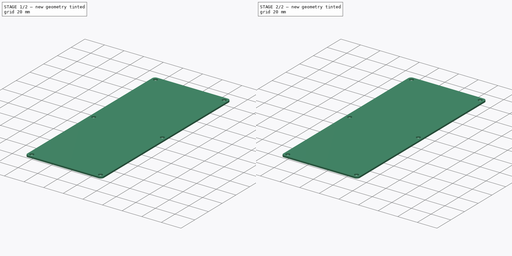
[diagram: build sequence overview — one tinted view per stage of 2, left to right]
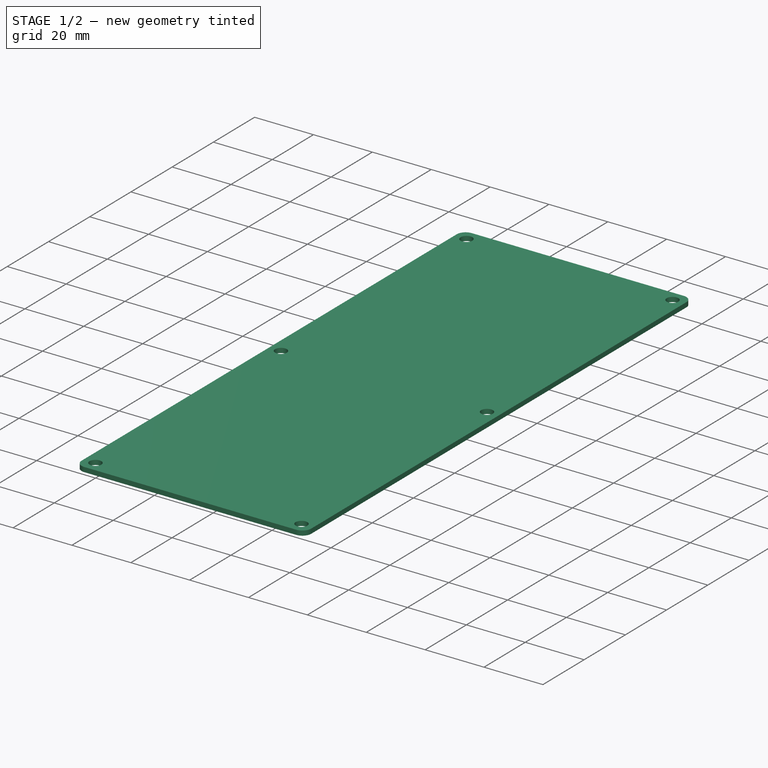
[diagram: stage 1 of 2 — iso view after this stage's code; geometry added in this stage tinted green]
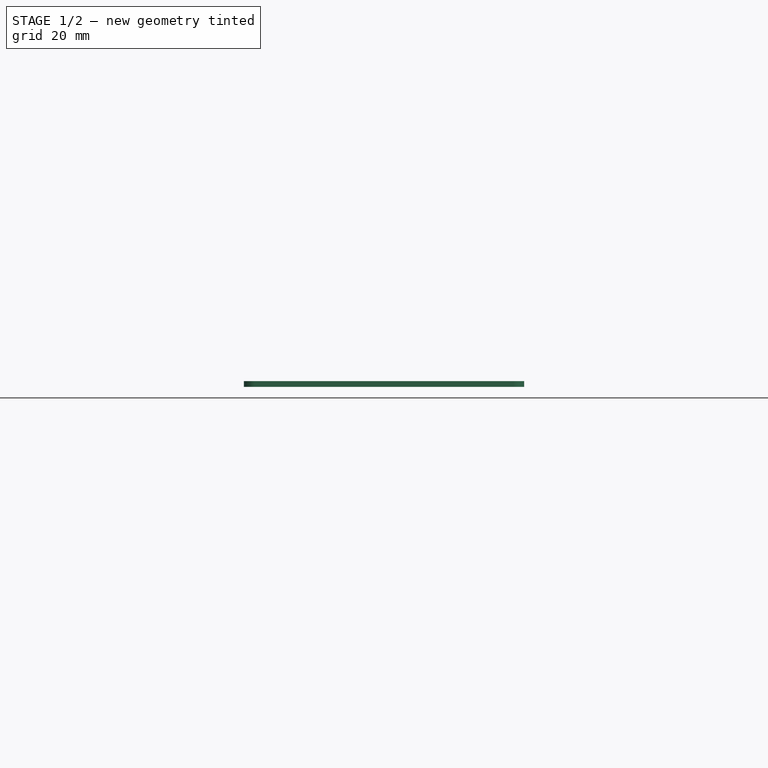
[diagram: stage 1 of 2 — front view after this stage's code; geometry added in this stage tinted green]
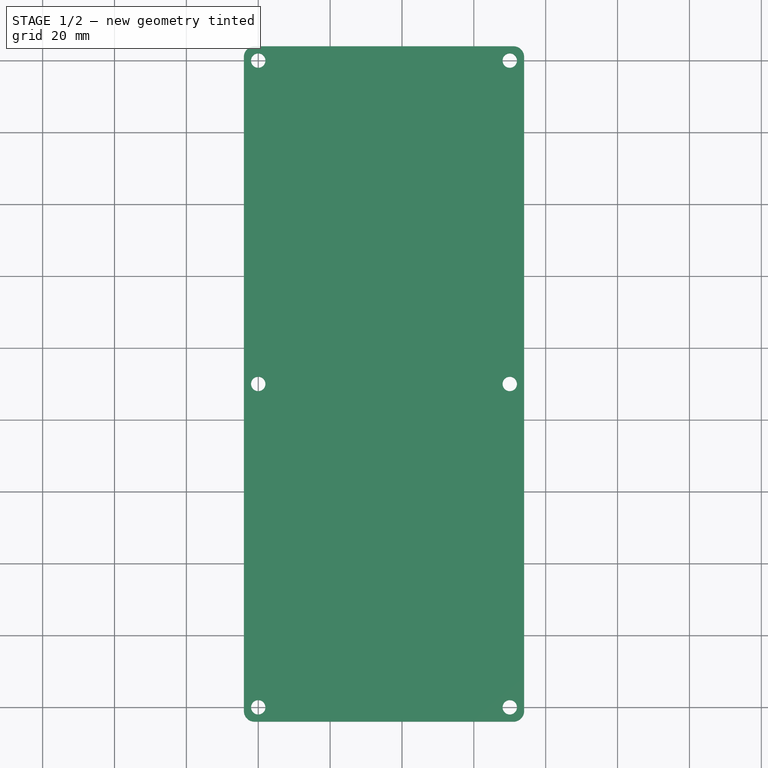
[diagram: stage 1 of 2 — top view after this stage's code; geometry added in this stage tinted green]
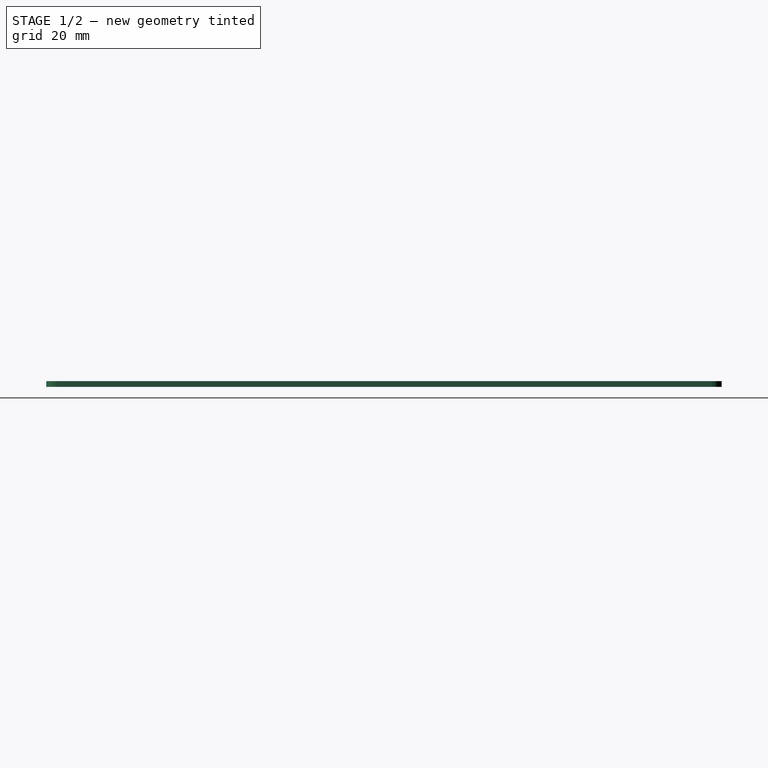
[diagram: stage 1 of 2 — right view after this stage's code; geometry added in this stage tinted green]
FCSTD DOCUMENT  (FreeCAD 0.17R12714 (Git))
Label: interconnect_cover_PP-FP0144
License: All rights reserved
LicenseURL: http://en.wikipedia.org/wiki/All_rights_reserved
objects: Drawing::FeatureView×60, Drawing::FeatureViewPart×4, Sketcher::SketchObject×2, Drawing::FeaturePage×2, PartDesign::Pad×1, PartDesign::Fillet×1, PartDesign::Pocket×1, PartDesign::Body×1, App::Part×1
note: 8 computed .brp shape members not serialized (recipe doc carries the construction recipe); baked Part::Feature solids carry a one-line shape summary decoded from their .brp

FEATURE [Sketcher::SketchObject] Sketch
  MapMode = 5
  Support = -> [XY_Plane001]
  sketch-geometry (15):
    g0: LineSegment [constr] StartX=0 StartY=0 StartZ=0 EndX=70 EndY=0 EndZ=0
    g1: LineSegment [constr] StartX=70 StartY=0 StartZ=0 EndX=70 EndY=180 EndZ=0
    g2: LineSegment [constr] StartX=70 StartY=180 StartZ=0 EndX=0 EndY=180 EndZ=0
    g3: LineSegment [constr] StartX=0 StartY=180 StartZ=0 EndX=0 EndY=0 EndZ=0
    g4: LineSegment [constr] StartX=0 StartY=90 StartZ=0 EndX=70 EndY=90 EndZ=0
    g5: LineSegment StartX=-4 StartY=184 StartZ=0 EndX=74 EndY=184 EndZ=0
    g6: LineSegment StartX=74 StartY=184 StartZ=0 EndX=74 EndY=-4 EndZ=0
    g7: LineSegment StartX=74 StartY=-4 StartZ=0 EndX=-4 EndY=-4 EndZ=0
    g8: LineSegment StartX=-4 StartY=-4 StartZ=0 EndX=-4 EndY=184 EndZ=0
    g9: Circle CenterX=0 CenterY=180 CenterZ=0 NormalX=0 NormalY=0 NormalZ=1 AngleXU=0 Radius=2
    g10: Circle CenterX=70 CenterY=180 CenterZ=0 NormalX=0 NormalY=0 NormalZ=1 AngleXU=0 Radius=2
    g11: Circle CenterX=70 CenterY=90 CenterZ=0 NormalX=0 NormalY=0 NormalZ=1 AngleXU=0 Radius=2
    g12: Circle CenterX=0 CenterY=90 CenterZ=0 NormalX=0 NormalY=0 NormalZ=1 AngleXU=0 Radius=2
    g13: Circle CenterX=0 CenterY=0 CenterZ=0 NormalX=0 NormalY=0 NormalZ=1 AngleXU=0 Radius=2
    g14: Circle CenterX=70 CenterY=0 CenterZ=0 NormalX=0 NormalY=0 NormalZ=1 AngleXU=0 Radius=2
  constraints (39):
    c: Coincident(g0,g1)
    c: Coincident(g1,g2)
    c: Coincident(g2,g3)
    c: Coincident(g3,g0)
    c: Horizontal(g0)
    c: Horizontal(g2)
    c: Vertical(g1)
    c: Vertical(g3)
    c: Coincident(g0,g-1)
    c: PointOnObject(g4,g3)
    c: PointOnObject(g4,g1)
    c: Horizontal(g4)
    c: DistanceY(g-1,g4) = 90
    c: DistanceY(g3) = -180
    c: DistanceX(g2) = -70
    c: Coincident(g5,g6)
    c: Coincident(g6,g7)
    c: Coincident(g7,g8)
    c: Coincident(g8,g5)
    c: Horizontal(g5)
    c: Horizontal(g7)
    c: Vertical(g6)
    c: Vertical(g8)
    c: DistanceX(g-1,g7) = -4
    c: DistanceY(g-1,g7) = -4
    c: DistanceX(g1,g5) = 4
    c: DistanceY(g1,g5) = 4
    c: Coincident(g9,g2)
    c: Coincident(g10,g1)
    c: Coincident(g11,g4)
    c: Coincident(g12,g4)
    c: Coincident(g13,g-1)
    c: Coincident(g14,g0)
    c: Equal(g13,g12)
    c: Equal(g12,g11)
    c: Equal(g11,g14)
    c: Equal(g14,g9)
    c: Equal(g9,g10)
    c: Radius(g10) = 2
FEATURE [PartDesign::Pad] Pad
  Length = 1.59
  Length2 = 100
  Profile = -> Sketch
  Type = 0
FEATURE [PartDesign::Fillet] Fillet
  Base = -> Pad [Edge8,Edge5,Edge2,Edge1]
  BaseFeature = -> Pad
  Radius = 3
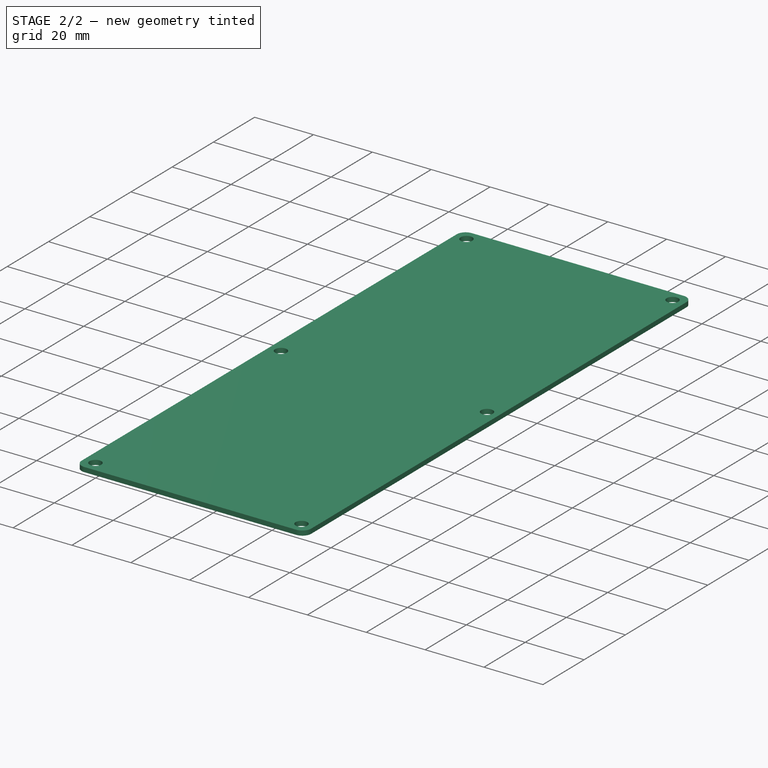
[diagram: stage 2 of 2 — iso view after this stage's code; geometry added in this stage tinted green]
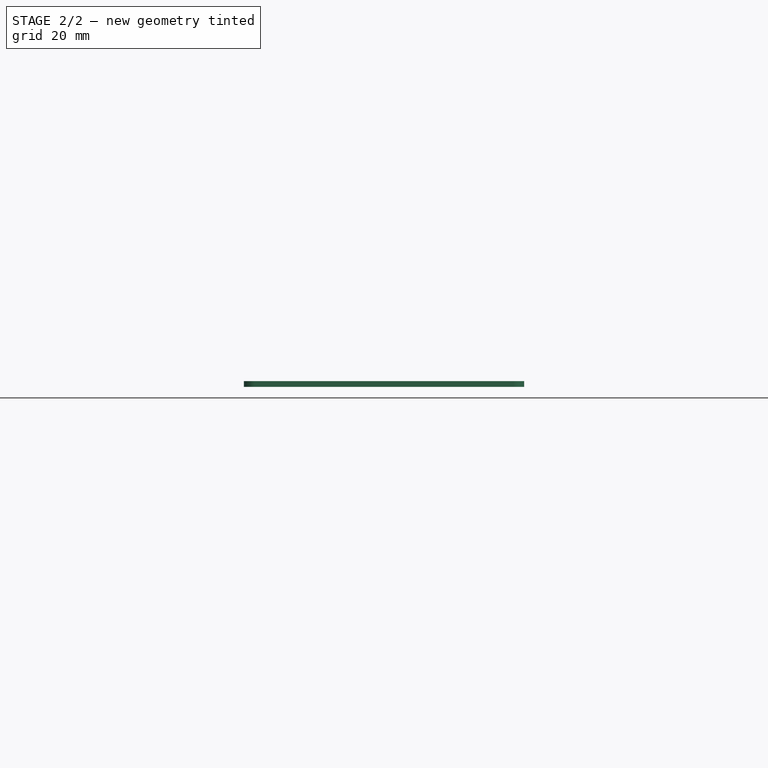
[diagram: stage 2 of 2 — front view after this stage's code; geometry added in this stage tinted green]
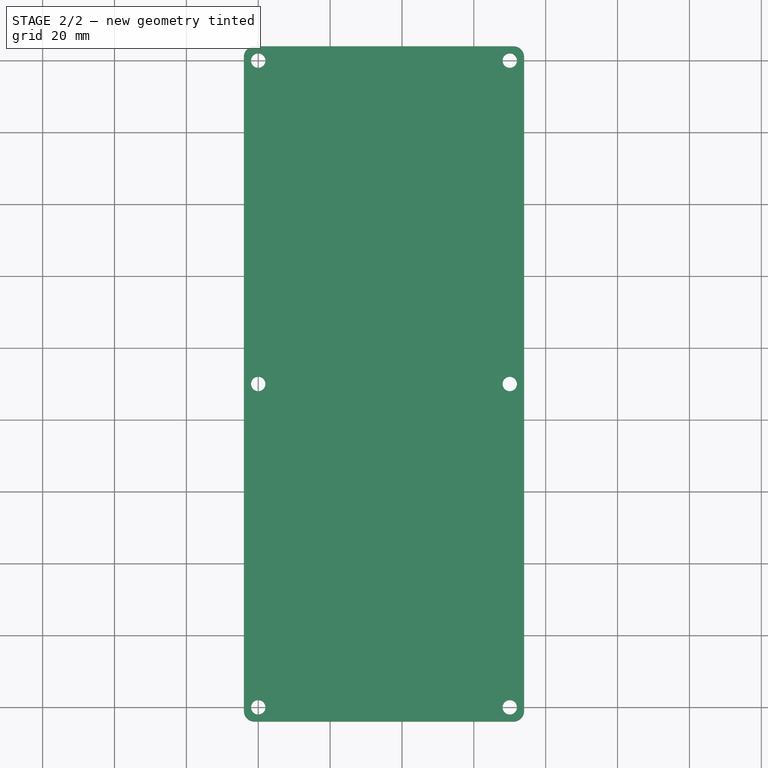
[diagram: stage 2 of 2 — top view after this stage's code; geometry added in this stage tinted green]
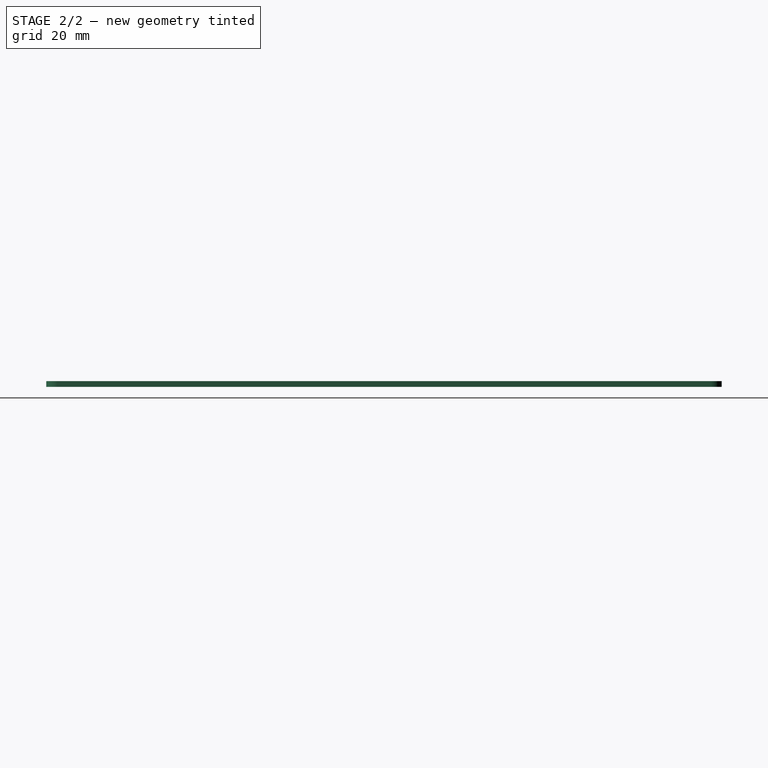
[diagram: stage 2 of 2 — right view after this stage's code; geometry added in this stage tinted green]
FEATURE [Drawing::FeatureViewPart] Ortho  label="Ortho_0_0"
  Direction = (0,0,1)
  HiddenWidth = 0.15
  LineWidth = 0.35
  Rotation = 90
  ShowHiddenLines = false
  ShowSmoothLines = false
  Source = -> Fillet
  Tolerance = 0.05
  ViewResult = <g id="Ortho_0_0"\n   transform="rotate(90,58.5,58) translate(58.5,58) scale(1,1)"\n  >\n<g   fill="none"\n   stroke="rgb(0, 0, 0)"\n   stroke-linecap="butt"\n   stroke-linejoin="miter"\n   stroke-width="0.350000"\n   transform="scale(1,-1)"\n  >\n<path id= "1" d=" M -1 184 L 71 184 " />\n<path d="M-1 184 A3 3 0 0 1 -4 181" /><path d="M71 184 A3 3 0 0 0 74 181" /><path id= "4" d=" M -4 -1 L -4 181 " />\n<path id= "5" d=" M 74 181 L 74 -1 " />\n<path d="M-1 -4 A3 3 0 0 0 -4 -1" /><path d="M74 -1 A3 3 0 0 0 71 -4" /><path id= "8" d=" M 71 -4 L -1 -4 " />\n<circle cx ="70" cy ="90" r ="2" /><circle cx ="70" cy ="0" r ="2" /><circle cx ="0" cy ="90" r ="2" /><circle cx ="0" cy ="0" r ="2" /><circle cx ="70" cy ="180" r ="2" /><circle cx ="0" cy ="180" r ="2" /></g>\n</g>
  Visible = true
  X = 58.5
  Y = 58
FEATURE [Drawing::FeatureViewPart] Ortho001  label="Ortho_0_1"
  Direction = (-1,0,0)
  HiddenWidth = 0.15
  LineWidth = 0.35
  Rotation = -90
  ShowHiddenLines = false
  ShowSmoothLines = false
  Source = -> Fillet
  Tolerance = 0.05
  ViewResult = <g id="Ortho_0_1"\n   transform="rotate(-90,58.5,31) translate(58.5,31) scale(1,1)"\n  >\n<g   fill="none"\n   stroke="rgb(0, 0, 0)"\n   stroke-linecap="butt"\n   stroke-linejoin="miter"\n   stroke-width="0.350000"\n   transform="scale(1,-1)"\n  >\n<path id= "1" d=" M 0 -184 L -1.59 -184 " />\n<path d="M0,-184 Q0,-183.991 0,-183.981  Q0,-183.953 0,-183.925  Q0,-183.878 0,-183.832  Q0,-183.767 0,-183.703  Q0,-183.622 0,-183.54  Q0,-183.443 0,-183.345  Q0,-183.233 0,-183.121  Q0,-182.996 0,-182.87  Q0,-182.733 0,-182.596  Q0,-182.449 0,-182.302  Q0,-182.146 0,-181.991  Q0,-181.829 0,-181.668  Q0,-181.337 0,-181 " /><path id= "3" d=" M 0 1 L 0 -181 " />\n<path d="M0,4 Q0,3.99057 0,3.98114  Q0,3.95296 0,3.92478  Q0,3.87822 0,3.83165  Q0,3.76728 0,3.70291  Q0,3.62154 0,3.54017  Q0,3.44283 0,3.34549  Q0,3.23341 0,3.12132  Q0,2.99589 0,2.87047  Q0,2.73328 0,2.5961  Q0,2.44887 0,2.30165  Q0,2.14624 0,1.99084  Q0,1.8292 0,1.66756  Q0,1.33708 0,1 " /><path d="M-1.59,-184 Q-1.59,-183.991 -1.59,-183.981  Q-1.59,-183.953 -1.59,-183.925  Q-1.59,-183.878 -1.59,-183.832  Q-1.59,-183.767 -1.59,-183.703  Q-1.59,-183.622 -1.59,-183.54  Q-1.59,-183.443 -1.59,-183.345  Q-1.59,-183.233 -1.59,-183.121  Q-1.59,-182.996 -1.59,-182.87  Q-1.59,-182.733 -1.59,-182.596  Q-1.59,-182.449 -1.59,-182.302  Q-1.59,-182.146 -1.59,-181.991  Q-1.59,-181.829 -1.59,-181.668  Q-1.59,-181.337 -1.59,-181 " /><path id= "6" d=" M -1.59 1 L -1.59 -181 " />\n<path d="M-1.59,4 Q-1.59,3.99057 -1.59,3.98114  Q-1.59,3.95296 -1.59,3.92478  Q-1.59,3.87822 -1.59,3.83165  Q-1.59,3.76728 -1.59,3.70291  Q-1.59,3.62154 -1.59,3.54017  Q-1.59,3.44283 -1.59,3.34549  Q-1.59,3.23341 -1.59,3.12132  Q-1.59,2.99589 -1.59,2.87047  Q-1.59,2.73328 -1.59,2.5961  Q-1.59,2.44887 -1.59,2.30165  Q-1.59,2.14624 -1.59,1.99084  Q-1.59,1.8292 -1.59,1.66756  Q-1.59,1.33708 -1.59,1 " /><path id= "8" d=" M 0 4 L -1.59 4 " />\n</g>\n</g>
  Visible = true
  X = 58.5
  Y = 31
FEATURE [Drawing::FeatureView] dimText001
  Rotation = 0
  ViewResult = <g> <text x="15.000000" y="160.000000" font-family="inherit" font-size="5" fill="rgb(0,0,0)" text-anchor="inherit" transform="rotate(0.000000 15.000000,160.000000)" >Notes:</text> </g>
  Visible = true
  X = 0
  Y = 0
FEATURE [Drawing::FeatureView] dimText002
  Rotation = 0
  ViewResult = <g> <text x="15.000000" y="165.000000" font-family="inherit" font-size="3" fill="rgb(0,0,0)" text-anchor="inherit" transform="rotate(0.000000 15.000000,165.000000)" >1. Parts must be RoHS compliant.</text> </g>
  Visible = true
  X = 0
  Y = 0
FEATURE [Drawing::FeatureView] dimText003
  Rotation = 0
  ViewResult = <g> <text x="15.000000" y="170.000000" font-family="inherit" font-size="3" fill="rgb(0,0,0)" text-anchor="inherit" transform="rotate(0.000000 15.000000,170.000000)" >2. Material 5052 H32 Aluminum</text> </g>
  Visible = true
  X = 0
  Y = 0
FEATURE [Drawing::FeatureView] dimText004
  Rotation = 0
  ViewResult = <g> <text x="15.000000" y="175.000000" font-family="inherit" font-size="3" fill="rgb(0,0,0)" text-anchor="inherit" transform="rotate(0.000000 15.000000,175.000000)" >3. Break all sharp edges prior to powder coat.</text> </g>
  Visible = true
  X = 0
  Y = 0
FEATURE [Drawing::FeatureView] dimText005
  Rotation = 0
  ViewResult = <g> <text x="15.000000" y="180.000000" font-family="inherit" font-size="3" fill="rgb(0,0,0)" text-anchor="inherit" transform="rotate(0.000000 15.000000,180.000000)" >4. Part is to be powder coated with Cardinal</text> </g>
  Visible = true
  X = 0
  Y = 0
FEATURE [Drawing::FeatureView] dim009
  Rotation = 0
  ViewResult = <g>  <circle cx ="239.500000" cy ="57.000000" r="0.500000" stroke="none" fill="rgb(0,0,255)" /> \n<line x1="250.000000" y1="45.000000" x2="239.500000" y2="57.000000" style="stroke:rgb(0,0,255);stroke-width:0.20" />\n<polygon points="241.475514,54.742270 244.015460,52.978418 243.451028,52.484540 242.886595,51.990661" style="fill:rgb(0,0,255);stroke:rgb(0,0,255);stroke-width:0" />\n<line x1="250.000000" y1="45.000000" x2="270.000000" y2="45.000000" style="stroke:rgb(0,0,255);stroke-width:0.20" />\n<text x="260.000000" y="43.000000" font-family="Verdana" font-size="3" fill="rgb(0,0,255)" text-anchor="middle"  >4X R3.0</text> </g>
  Visible = true
  X = 0
  Y = 0
FEATURE [Drawing::FeatureView] dim010
  Rotation = 0
  ViewResult = <g>  <circle cx ="148.500000" cy ="58.000000" r="0.500000" stroke="none" fill="rgb(0,0,255)" /> \n<line x1="140.000000" y1="45.000000" x2="149.594499" y2="59.673939" style="stroke:rgb(0,0,255);stroke-width:0.20" />\n<polygon points="147.405501,56.326061 146.391480,53.404715 145.763753,53.815152 145.136026,54.225589" style="fill:rgb(0,0,255);stroke:rgb(0,0,255);stroke-width:0" />\n<polygon points="149.594499,59.673939 150.608520,62.595285 151.236247,62.184848 151.863974,61.774411" style="fill:rgb(0,0,255);stroke:rgb(0,0,255);stroke-width:0" />\n<line x1="140.000000" y1="45.000000" x2="110.000000" y2="45.000000" style="stroke:rgb(0,0,255);stroke-width:0.20" />\n<text x="125.000000" y="43.000000" font-family="Verdana" font-size="3" fill="rgb(0,0,255)" text-anchor="middle"  >6X Ø4.0 THRU</text> </g>
  Visible = true
  X = 0
  Y = 0
FEATURE [Drawing::FeatureView] centerLines001
  Rotation = 0
  ViewResult = <g transform="scale(1.000000,1.000000)" stroke="rgb(0,0,255)"  stroke-width="0.300000" > <path d="M 58.500000,128.000000 L 58.500000,126.000000 "/>\n<path d="M 58.500000,128.000000 L 60.489371,128.000000 "/>\n<path d="M 58.500000,128.000000 L 58.500000,129.977161 "/>\n<path d="M 58.500000,128.000000 L 56.500000,128.000000 "/> </g> 
  Visible = true
  X = 0
  Y = 0
FEATURE [Drawing::FeatureView] centerLines002
  Rotation = 0
  ViewResult = <g transform="scale(1.000000,1.000000)" stroke="rgb(0,0,255)"  stroke-width="0.300000" > <path d="M 58.500000,58.000000 L 58.500000,60.000000 "/>\n<path d="M 58.500000,58.000000 L 60.500000,58.000000 "/>\n<path d="M 58.500000,58.000000 L 58.500000,56.000000 "/>\n<path d="M 58.500000,58.000000 L 56.500000,58.000000 "/> </g> 
  Visible = true
  X = 0
  Y = 0
FEATURE [Drawing::FeatureView] centerLines003
  Rotation = 0
  ViewResult = <g transform="scale(1.000000,1.000000)" stroke="rgb(0,0,255)"  stroke-width="0.300000" > <path d="M 148.500000,58.000000 L 148.500000,60.000000 "/>\n<path d="M 148.500000,58.000000 L 150.500000,58.000000 "/>\n<path d="M 148.500000,58.000000 L 148.500000,56.000000 "/>\n<path d="M 148.500000,58.000000 L 146.500000,58.000000 "/> </g> 
  Visible = true
  X = 0
  Y = 0
FEATURE [Drawing::FeatureView] centerLines004
  Rotation = 0
  ViewResult = <g transform="scale(1.000000,1.000000)" stroke="rgb(0,0,255)"  stroke-width="0.300000" > <path d="M 238.500000,58.000000 L 238.500000,60.000000 "/>\n<path d="M 238.500000,58.000000 L 240.207791,58.000000 "/>\n<path d="M 238.500000,58.000000 L 238.500000,56.000000 "/>\n<path d="M 238.500000,58.000000 L 236.500000,58.000000 M 234.500000,58.000000 L 233.708933,58.000000 "/> </g> 
  Visible = true
  X = 0
  Y = 0
FEATURE [Drawing::FeatureView] centerLines005
  Rotation = 0
  ViewResult = <g transform="scale(1.000000,1.000000)" stroke="rgb(0,0,255)"  stroke-width="0.300000" > <path d="M 238.500000,128.000000 L 238.500000,126.000000 "/>\n<path d="M 238.500000,128.000000 L 240.207791,128.000000 "/>\n<path d="M 238.500000,128.000000 L 238.500000,129.727205 "/>\n<path d="M 238.500000,128.000000 L 236.500000,128.000000 "/> </g> 
  Visible = true
  X = 0
  Y = 0
FEATURE [Drawing::FeatureView] centerLines006
  Rotation = 0
  ViewResult = <g transform="scale(1.000000,1.000000)" stroke="rgb(0,0,255)"  stroke-width="0.300000" > <path d="M 148.500000,128.000000 L 148.500000,126.000000 "/>\n<path d="M 148.500000,128.000000 L 150.500000,128.000000 "/>\n<path d="M 148.500000,128.000000 L 148.500000,129.977161 "/>\n<path d="M 148.500000,128.000000 L 146.500000,128.000000 "/> </g> 
  Visible = true
  X = 0
  Y = 0
FEATURE [Drawing::FeatureView] dim002
  Rotation = 0
  ViewResult = <g> \n  <line x1="58.500000" y1="128.000000" x2="49.241172" y2="128.000000" style="stroke:rgb(0,0,255);stroke-width:0.20" />\n<line x1="58.500000" y1="58.000000" x2="49.241172" y2="58.000000" style="stroke:rgb(0,0,255);stroke-width:0.20" />\n<line x1="50.241172" y1="128.000000" x2="50.241172" y2="58.000000" style="stroke:rgb(0,0,255);stroke-width:0.20" /> \n  <polygon points="50.241172,58.000000 49.491172,61.000000 50.241172,61.000000 50.991172,61.000000" style="fill:rgb(0,0,255);stroke:rgb(0,0,255);stroke-width:0" /><polygon points="50.241172,128.000000 50.991172,125.000000 50.241172,125.000000 49.491172,125.000000" style="fill:rgb(0,0,255);stroke:rgb(0,0,255);stroke-width:0" /> \n  <text x="48.241172" y="93.000000" font-family="Verdana" font-size="3" fill="rgb(0,0,255)" text-anchor="middle" transform="rotate(-90.000000 48.241172,93.000000)" >3X 70.00</text> </g>
  Visible = true
  X = 0
  Y = 0
FEATURE [Drawing::FeatureView] dim003
  Rotation = 0
  ViewResult = <g> \n  <line x1="58.500000" y1="128.000000" x2="45.491831" y2="128.000000" style="stroke:rgb(0,0,255);stroke-width:0.20" />\n<line x1="55.500000" y1="132.000000" x2="45.491831" y2="132.000000" style="stroke:rgb(0,0,255);stroke-width:0.20" />\n<line x1="46.491831" y1="128.000000" x2="46.491831" y2="132.000000" style="stroke:rgb(0,0,255);stroke-width:0.20" /> \n  <polygon points="46.491831,132.000000 45.741831,135.000000 46.491831,135.000000 47.241831,135.000000" style="fill:rgb(0,0,255);stroke:rgb(0,0,255);stroke-width:0" /><polygon points="46.491831,128.000000 47.241831,125.000000 46.491831,125.000000 45.741831,125.000000" style="fill:rgb(0,0,255);stroke:rgb(0,0,255);stroke-width:0" /> \n  <text x="44.392199" y="124.178180" font-family="Verdana" font-size="3" fill="rgb(0,0,255)" text-anchor="middle" transform="rotate(-90.000000 44.392199,124.178180)" >3X 4.00</text> </g>
  Visible = true
  X = 0
  Y = 0
FEATURE [Drawing::FeatureView] dim005
  Rotation = 0
  ViewResult = <g> \n  <line x1="148.500000" y1="132.000000" x2="148.500000" y2="139.475667" style="stroke:rgb(0,0,255);stroke-width:0.20" />\n<line x1="58.500000" y1="132.000000" x2="58.500000" y2="139.475667" style="stroke:rgb(0,0,255);stroke-width:0.20" />\n<line x1="148.500000" y1="138.475667" x2="58.500000" y2="138.475667" style="stroke:rgb(0,0,255);stroke-width:0.20" /> \n  <polygon points="58.500000,138.475667 61.500000,139.225667 61.500000,138.475667 61.500000,137.725667" style="fill:rgb(0,0,255);stroke:rgb(0,0,255);stroke-width:0" /><polygon points="148.500000,138.475667 145.500000,137.725667 145.500000,138.475667 145.500000,139.225667" style="fill:rgb(0,0,255);stroke:rgb(0,0,255);stroke-width:0" /> \n  <text x="103.500000" y="136.475667" font-family="Verdana" font-size="3" fill="rgb(0,0,255)" text-anchor="middle"  >2X 90.00</text> </g>
  Visible = true
  X = 0
  Y = 0
FEATURE [Drawing::FeatureView] dim006
  Rotation = 0
  ViewResult = <g> \n  <line x1="148.500000" y1="132.000000" x2="148.500000" y2="139.475667" style="stroke:rgb(0,0,255);stroke-width:0.20" />\n<line x1="238.500000" y1="132.000000" x2="238.500000" y2="139.475667" style="stroke:rgb(0,0,255);stroke-width:0.20" />\n<line x1="148.500000" y1="138.475667" x2="238.500000" y2="138.475667" style="stroke:rgb(0,0,255);stroke-width:0.20" /> \n  <polygon points="238.500000,138.475667 235.500000,137.725667 235.500000,138.475667 235.500000,139.225667" style="fill:rgb(0,0,255);stroke:rgb(0,0,255);stroke-width:0" /><polygon points="148.500000,138.475667 151.500000,139.225667 151.500000,138.475667 151.500000,137.725667" style="fill:rgb(0,0,255);stroke:rgb(0,0,255);stroke-width:0" /> \n  <text x="193.500000" y="136.475667" font-family="Verdana" font-size="3" fill="rgb(0,0,255)" text-anchor="middle"  >2X 90.00</text> </g>
  Visible = true
  X = 0
  Y = 0
FEATURE [Drawing::FeatureView] dim007
  Rotation = 0
  ViewResult = <g> \n  <line x1="148.500000" y1="128.000000" x2="148.500000" y2="145.974525" style="stroke:rgb(0,0,255);stroke-width:0.20" />\n<line x1="54.500000" y1="131.000000" x2="54.500000" y2="145.974525" style="stroke:rgb(0,0,255);stroke-width:0.20" />\n<line x1="148.500000" y1="144.974525" x2="54.500000" y2="144.974525" style="stroke:rgb(0,0,255);stroke-width:0.20" /> \n  <polygon points="54.500000,144.974525 57.500000,145.724525 57.500000,144.974525 57.500000,144.224525" style="fill:rgb(0,0,255);stroke:rgb(0,0,255);stroke-width:0" /><polygon points="148.500000,144.974525 145.500000,144.224525 145.500000,144.974525 145.500000,145.724525" style="fill:rgb(0,0,255);stroke:rgb(0,0,255);stroke-width:0" /> \n  <text x="101.500000" y="142.974525" font-family="Verdana" font-size="3" fill="rgb(0,0,255)" text-anchor="middle"  >94.0</text> </g>
  Visible = true
  X = 0
  Y = 0
FEATURE [Drawing::FeatureView] dim008
  Rotation = 0
  ViewResult = <g> \n  <line x1="148.500000" y1="128.000000" x2="148.500000" y2="145.724569" style="stroke:rgb(0,0,255);stroke-width:0.20" />\n<line x1="242.500000" y1="131.000000" x2="242.500000" y2="145.724569" style="stroke:rgb(0,0,255);stroke-width:0.20" />\n<line x1="148.500000" y1="144.724569" x2="242.500000" y2="144.724569" style="stroke:rgb(0,0,255);stroke-width:0.20" /> \n  <polygon points="242.500000,144.724569 239.500000,143.974569 239.500000,144.724569 239.500000,145.474569" style="fill:rgb(0,0,255);stroke:rgb(0,0,255);stroke-width:0" /><polygon points="148.500000,144.724569 151.500000,145.474569 151.500000,144.724569 151.500000,143.974569" style="fill:rgb(0,0,255);stroke:rgb(0,0,255);stroke-width:0" /> \n  <text x="195.500000" y="142.724569" font-family="Verdana" font-size="3" fill="rgb(0,0,255)" text-anchor="middle"  >94.0</text> </g>
  Visible = true
  X = 0
  Y = 0
FEATURE [Drawing::FeatureView] centerLines007
  Rotation = 0
  ViewResult = <g transform="scale(1.000000,1.000000)" stroke="rgb(0,0,255)"  stroke-width="0.300000" > <path d="M 148.500000,58.000000 L 148.500000,60.000000 M 148.500000,62.000000 L 148.500000,68.000000 M 148.500000,70.000000 L 148.500000,72.000000 M 148.500000,74.000000 L 148.500000,80.000000 M 148.500000,82.000000 L 148.500000,84.000000 M 148.500000,86.000000 L 148.500000,92.000000 M 148.500000,94.000000 L 148.500000,96.000000 M 148.500000,98.000000 L 148.500000,104.000000 M 148.500000,106.000000 L 148.500000,108.000000 M 148.500000,110.000000 L 148.500000,116.000000 M 148.500000,118.000000 L 148.500000,120.000000 M 148.500000,122.000000 L 148.500000,125.227995 "/>\n<path d="M 148.500000,58.000000 L 150.500000,58.000000 "/>\n<path d="M 148.500000,58.000000 L 148.500000,58.489722 "/>\n<path d="M 148.500000,58.000000 L 149.473735,58.000000 "/> </g> 
  Visible = true
  X = 0
  Y = 0
FEATURE [Drawing::FeatureView] dim004
  Rotation = 0
  ViewResult = <g> \n  <line x1="55.500000" y1="132.000000" x2="34.000000" y2="132.000000" style="stroke:rgb(0,0,255);stroke-width:0.20" />\n<line x1="55.500000" y1="54.000000" x2="34.000000" y2="54.000000" style="stroke:rgb(0,0,255);stroke-width:0.20" />\n<line x1="35.000000" y1="132.000000" x2="35.000000" y2="54.000000" style="stroke:rgb(0,0,255);stroke-width:0.20" /> \n  <polygon points="35.000000,54.000000 34.250000,57.000000 35.000000,57.000000 35.750000,57.000000" style="fill:rgb(0,0,255);stroke:rgb(0,0,255);stroke-width:0" /><polygon points="35.000000,132.000000 35.750000,129.000000 35.000000,129.000000 34.250000,129.000000" style="fill:rgb(0,0,255);stroke:rgb(0,0,255);stroke-width:0" /> \n  <text x="33.000000" y="93.000000" font-family="Verdana" font-size="3" fill="rgb(0,0,255)" text-anchor="middle" transform="rotate(-90.000000 33.000000,93.000000)" >78.0</text> </g>
  Visible = true
  X = 0
  Y = 0
FEATURE [Drawing::FeatureViewPart] View
  Direction = (1,1,1)
  HiddenWidth = 0.15
  LineWidth = 0.35
  Rotation = 0
  Scale = 0.25
  ShowHiddenLines = false
  ShowSmoothLines = false
  Source = -> Fillet
  Tolerance = 0.05
  ViewResult = <blob: 3048 chars omitted>
  Visible = true
  X = 100
  Y = 190
FEATURE [Drawing::FeatureView] dimText007
  Rotation = 0
  ViewResult = <g> <text x="65.000000" y="20.000000" font-family="inherit" font-size="3" fill="rgb(0,0,255)" text-anchor="inherit" transform="rotate(0.000000 65.000000,20.000000)" >Flatness: 1.0mm</text> </g>
  Visible = true
  X = 0
  Y = 0
FEATURE [Drawing::FeatureView] grabPoint001
  Rotation = 0
  ViewResult = <g> <line x1="85.6454803475" y1="30.9354912292" x2="85.6454803475" y2="30.9354912292" style="stroke:rgb(0,0,0);stroke-width:0.01" /> </g> 
  Visible = true
  X = 0
  Y = 0
FEATURE [Drawing::FeatureView] dimLine001
  Rotation = 0
  ViewResult = <g   >\n<line x1="80.489565" y1="21.769420" x2="85.645480" y2="30.935491" style="stroke:rgb(0,0,255);stroke-width:0.20" />\n<polygon points="85.645480,30.935491 84.828378,27.953069 84.174697,28.320765 83.521015,28.688461" style="fill:rgb(0,0,255);stroke:rgb(0,0,255);stroke-width:0" />\n<line x1="80.489565" y1="21.769420" x2="63.589621" y2="21.769420" style="stroke:rgb(0,0,255);stroke-width:0.20" />\n</g> 
  Visible = true
  X = 0
  Y = 0
FEATURE [Drawing::FeatureView] dim001
  Rotation = 0
  ViewResult = <g> \n  <line x1="52.500000" y1="31.000000" x2="40.157311" y2="31.000000" style="stroke:rgb(0,0,255);stroke-width:0.20" />\n<line x1="52.500000" y1="32.590000" x2="40.157311" y2="32.590000" style="stroke:rgb(0,0,255);stroke-width:0.20" />\n<line x1="41.157311" y1="31.000000" x2="41.157311" y2="32.590000" style="stroke:rgb(0,0,255);stroke-width:0.20" /> \n  <polygon points="41.157311,32.590000 40.407311,35.590000 41.157311,35.590000 41.907311,35.590000" style="fill:rgb(0,0,255);stroke:rgb(0,0,255);stroke-width:0" /><polygon points="41.157311,31.000000 41.907311,28.000000 41.157311,28.000000 40.407311,28.000000" style="fill:rgb(0,0,255);stroke:rgb(0,0,255);stroke-width:0" /> \n  <text x="39.157311" y="31.795000" font-family="Verdana" font-size="3" fill="rgb(0,0,255)" text-anchor="middle" transform="rotate(-90.000000 39.157311,31.795000)" >1.59</text> </g>
  Visible = true
  X = 0
  Y = 0
FEATURE [Drawing::FeatureView] dimText006
  Rotation = 0
  ViewResult = <g> <text x="18.573125" y="184.689769" font-family="inherit" font-size="3" fill="rgb(0,0,0)" text-anchor="inherit" transform="rotate(0.000000 18.573125,184.689769)" >color C241-BK109. Coating thickness</text> </g>
  Visible = true
  X = 0
  Y = 0
FEATURE [Drawing::FeatureView] dimText008
  Rotation = 0
  ViewResult = <g> <text x="18.573125" y="188.682123" font-family="inherit" font-size="3" fill="rgb(0,0,0)" text-anchor="inherit"  >0.05mm to 0.12mm</text> </g>
  Visible = true
  X = 0
  Y = 0
FEATURE [Drawing::FeatureView] dimText009
  Rotation = 0
  ViewResult = <g> <text x="14.608426" y="192.487501" font-family="inherit" font-size="3" fill="rgb(0,0,0)" text-anchor="inherit" transform="rotate(0.000000 14.608426,192.487501)" >5. Mask outward facing side shown on this drawing</text> </g>
  Visible = true
  X = 0
  Y = 0
FEATURE [Drawing::FeatureView] dimText010
  Rotation = 0
  ViewResult = <g> <text x="18.399775" y="196.264262" font-family="inherit" font-size="3" fill="rgb(0,0,0)" text-anchor="inherit" transform="rotate(0.000000 18.399775,196.264262)" > prior to powder coat</text> </g>
  Visible = true
  X = 0
  Y = 0
FEATURE [Drawing::FeatureView] dimText011
  Rotation = 0
  ViewResult = <g> <text x="171.863840" y="14.520903" font-family="inherit" font-size="4" fill="rgb(0,0,0)" text-anchor="inherit" transform="rotate(0.000000 171.863840,14.520903)" >Revision</text> </g>
  Visible = true
  X = 0
  Y = 0
FEATURE [Drawing::FeatureView] dimText012
  Rotation = 0
  ViewResult = <g> <text x="204.685060" y="15.117653" font-family="inherit" font-size="4" fill="rgb(0,0,0)" text-anchor="inherit" transform="rotate(0.000000 204.685060,15.117653)" >Description</text> </g>
  Visible = true
  X = 0
  Y = 0
FEATURE [Drawing::FeatureView] dimText013
  Rotation = 0
  ViewResult = <g> <text x="176.836752" y="19.294899" font-family="inherit" font-size="3" fill="rgb(0,0,0)" text-anchor="inherit" transform="rotate(0.000000 176.836752,19.294899)" >IR</text> </g>
  Visible = true
  X = 0
  Y = 0
FEATURE [Drawing::FeatureView] dimText014
  Rotation = 0
  ViewResult = <g> <text x="204.883976" y="19.095982" font-family="inherit" font-size="3" fill="rgb(0,0,0)" text-anchor="inherit"  >New part number for silk screen version</text> </g>
  Visible = true
  X = 0
  Y = 0
FEATURE [Drawing::FeatureView] dimLine003
  Rotation = 0
  ViewResult = <g   >\n<line x1="161.503352" y1="43.668288" x2="148.500000" y2="32.590000" style="stroke:rgb(0,0,255);stroke-width:0.20" />\n<polygon points="148.500000,32.590000 150.297227,35.106441 150.783612,34.535538 151.269996,33.964635" style="fill:rgb(0,0,255);stroke:rgb(0,0,255);stroke-width:0" />\n<line x1="161.503352" y1="43.668288" x2="203.785345" y2="43.668288" style="stroke:rgb(0,0,255);stroke-width:0.20" />\n</g> 
  Visible = true
  X = 0
  Y = 0
FEATURE [Drawing::FeatureView] dimText018
  Rotation = 0
  ViewResult = <g> <text x="169.127973" y="42.281993" font-family="inherit" font-size="3" fill="rgb(0,0,0)" text-anchor="inherit" transform="rotate(0.000000 169.127973,42.281993)" >Mask this side</text> </g>
  Visible = true
  X = 0
  Y = 0
FEATURE [Drawing::FeatureView] dimText021
  Rotation = 0
  ViewResult = <g> <text x="25.856408" y="9.100743" font-family="inherit" font-size="2.75" fill="rgb(0,0,0)" text-anchor="inherit" transform="rotate(0.000000 25.856408,9.100743)" >6</text> </g>
  Visible = true
  X = 0
  Y = 0
FEATURE [Sketcher::SketchObject] Sketch001
  ExternalGeometry = -> [Fillet]
  MapMode = 5
  Placement = pos=(0,0,1.59) rot=(0,0,1;0rad)
  Support = -> [Fillet]
  sketch-geometry (10):
    g0: LineSegment [constr] StartX=-4 StartY=-1 StartZ=0 EndX=-4 EndY=-4 EndZ=0
    g1: LineSegment [constr] StartX=-4 StartY=-4 StartZ=0 EndX=-1 EndY=-4 EndZ=0
    g2: LineSegment [constr] StartX=6 StartY=-4 StartZ=0 EndX=6 EndY=184 EndZ=0
    g3: Circle CenterX=6 CenterY=153 CenterZ=0 NormalX=0 NormalY=0 NormalZ=1 AngleXU=0 Radius=0.01
    g4: Circle CenterX=6 CenterY=107.5 CenterZ=0 NormalX=0 NormalY=0 NormalZ=1 AngleXU=0 Radius=0.01
    g5: Circle CenterX=6 CenterY=78.5 CenterZ=0 NormalX=0 NormalY=0 NormalZ=1 AngleXU=0 Radius=0.01
    g6: Circle CenterX=6 CenterY=59 CenterZ=0 NormalX=0 NormalY=0 NormalZ=1 AngleXU=0 Radius=0.01
    g7: Circle CenterX=6 CenterY=33 CenterZ=0 NormalX=0 NormalY=0 NormalZ=1 AngleXU=0 Radius=0.01
    g8: Circle CenterX=6 CenterY=21 CenterZ=0 NormalX=0 NormalY=0 NormalZ=1 AngleXU=0 Radius=0.01
    g9: Circle CenterX=6 CenterY=9 CenterZ=0 NormalX=0 NormalY=0 NormalZ=1 AngleXU=0 Radius=0.01
  constraints (30):
    c: Coincident(g0,g-5)
    c: Vertical(g0)
    c: Coincident(g1,g0)
    c: Coincident(g1,g-4)
    c: Horizontal(g1)
    c: PointOnObject(g2,g-4)
    c: PointOnObject(g2,g-3)
    c: Vertical(g2)
    c: PointOnObject(g3,g2)
    c: PointOnObject(g4,g2)
    c: PointOnObject(g5,g2)
    c: PointOnObject(g6,g2)
    c: PointOnObject(g7,g2)
    c: PointOnObject(g8,g2)
    c: PointOnObject(g9,g2)
    c: DistanceY(g0,g9) = 13
    c: DistanceX(g0,g2) = 10
    c: DistanceY(g0,g8) = 25
    c: DistanceY(g0,g7) = 37
    c: DistanceY(g0,g6) = 63
    c: DistanceY(g0,g5) = 82.5
    c: DistanceY(g0,g4) = 111.5
    c: DistanceY(g0,g3) = 157
    c: Radius(g9) = 0.01
    c: Equal(g9,g8)
    c: Equal(g9,g7)
    c: Equal(g9,g6)
    c: Equal(g9,g5)
    c: Equal(g9,g4)
    c: Equal(g9,g3)
FEATURE [PartDesign::Pocket] Pocket  label="silkscreen_reference"
  BaseFeature = -> Fillet
  Length = 0.1
  Profile = -> Sketch001
  Type = 0
FEATURE [PartDesign::Body] FilletBody
  Group = -> [Sketch,Pad,Fillet,Sketch001,Pocket]
  Origin = -> Origin001
  Tip = -> Pocket
FEATURE [App::Part] Part
  Group = -> [FilletBody]
  License = CC BY 3.0
  LicenseURL = http://creativecommons.org/licenses/by/3.0/
  Origin = -> Origin
FEATURE [Drawing::FeatureViewPart] View001
  Direction = (0,0,1)
  HiddenWidth = 0.15
  LineWidth = 0.35
  Rotation = 90
  ShowHiddenLines = false
  ShowSmoothLines = false
  Source = -> Pocket
  Tolerance = 0.05
  ViewResult = <g id="View001"\n   transform="rotate(90,50,75) translate(50,75) scale(1,1)"\n  >\n<g   fill="none"\n   stroke="rgb(0, 0, 0)"\n   stroke-linecap="butt"\n   stroke-linejoin="miter"\n   stroke-width="0.350000"\n   transform="scale(1,-1)"\n  >\n<path id= "1" d=" M -1 184 L 71 184 " />\n<path d="M-1 184 A3 3 0 0 1 -4 181" /><path d="M71 184 A3 3 0 0 0 74 181" /><path id= "4" d=" M -4 -1 L -4 181 " />\n<path id= "5" d=" M 74 181 L 74 -1 " />\n<path d="M-1 -4 A3 3 0 0 0 -4 -1" /><path d="M74 -1 A3 3 0 0 0 71 -4" /><path id= "8" d=" M 71 -4 L -1 -4 " />\n<circle cx ="70" cy ="0" r ="2" /><circle cx ="6" cy ="59" r ="0.01" /><circle cx ="6" cy ="33" r ="0.01" /><circle cx ="6" cy ="21" r ="0.01" /><circle cx ="6" cy ="9" r ="0.01" /><circle cx ="6" cy ="153" r ="0.01" /><circle cx ="6" cy ="107.5" r ="0.01" /><circle cx ="70" cy ="90" r ="2" /><circle cx ="6" cy ="78.5" r ="0.01" /><circle cx ="0" cy ="90" r ="2" /><circle cx ="0" cy ="0" r ="2" /><circle cx ="0" cy ="180" r ="2" /><circle cx ="70" cy ="180" r ="2" /></g>\n</g>
  Visible = true
  X = 50
  Y = 75
FEATURE [Drawing::FeatureView] dimStack001
  Rotation = 0
  ViewResult = <g> <line x1="46.000000" y1="72.000000" x2="46.000000" y2="64.000000" style="stroke:rgb(0,0,255);stroke-width:0.25" />\n<line x1="59.000000" y1="78.989999" x2="59.000000" y2="64.000000" style="stroke:rgb(0,0,255);stroke-width:0.25" />\n<line x1="46.000000" y1="65.000000" x2="59.000000" y2="65.000000" style="stroke:rgb(0,0,255);stroke-width:0.25" />\n<polygon points="46.000000,65.000000 48.000000,66.000000 48.000000,65.000000 48.000000,64.000000" style="fill:rgb(0,0,255);stroke:rgb(0,0,255);stroke-width:0" />\n<polygon points="59.000000,65.000000 57.000000,64.000000 57.000000,65.000000 57.000000,66.000000" style="fill:rgb(0,0,255);stroke:rgb(0,0,255);stroke-width:0" />\n<text x="52.500000" y="63.000000" font-family="inherit" font-size="3" fill="rgb(0,0,255)" text-anchor="middle"  >13 ±2</text> </g> 
  Visible = true
  X = 0
  Y = 0
FEATURE [Drawing::FeatureView] dimStack002
  Rotation = 0
  ViewResult = <g> <line x1="46.000000" y1="72.000000" x2="46.000000" y2="59.000000" style="stroke:rgb(0,0,255);stroke-width:0.25" />\n<line x1="71.000000" y1="78.989999" x2="71.000000" y2="59.000000" style="stroke:rgb(0,0,255);stroke-width:0.25" />\n<line x1="46.000000" y1="60.000000" x2="71.000000" y2="60.000000" style="stroke:rgb(0,0,255);stroke-width:0.25" />\n<polygon points="46.000000,60.000000 48.000000,61.000000 48.000000,60.000000 48.000000,59.000000" style="fill:rgb(0,0,255);stroke:rgb(0,0,255);stroke-width:0" />\n<polygon points="71.000000,60.000000 69.000000,59.000000 69.000000,60.000000 69.000000,61.000000" style="fill:rgb(0,0,255);stroke:rgb(0,0,255);stroke-width:0" />\n<text x="58.500000" y="58.000000" font-family="inherit" font-size="3" fill="rgb(0,0,255)" text-anchor="middle"  >25 ±2</text> </g> 
  Visible = true
  X = 0
  Y = 0
FEATURE [Drawing::FeatureView] dimStack003
  Rotation = 0
  ViewResult = <g> <line x1="46.000000" y1="72.000000" x2="46.000000" y2="54.000000" style="stroke:rgb(0,0,255);stroke-width:0.25" />\n<line x1="83.000000" y1="78.989999" x2="83.000000" y2="54.000000" style="stroke:rgb(0,0,255);stroke-width:0.25" />\n<line x1="46.000000" y1="55.000000" x2="83.000000" y2="55.000000" style="stroke:rgb(0,0,255);stroke-width:0.25" />\n<polygon points="46.000000,55.000000 48.000000,56.000000 48.000000,55.000000 48.000000,54.000000" style="fill:rgb(0,0,255);stroke:rgb(0,0,255);stroke-width:0" />\n<polygon points="83.000000,55.000000 81.000000,54.000000 81.000000,55.000000 81.000000,56.000000" style="fill:rgb(0,0,255);stroke:rgb(0,0,255);stroke-width:0" />\n<text x="64.500000" y="53.000000" font-family="inherit" font-size="3" fill="rgb(0,0,255)" text-anchor="middle"  >37 ±2</text> </g> 
  Visible = true
  X = 0
  Y = 0
FEATURE [Drawing::FeatureView] dimStack004
  Rotation = 0
  ViewResult = <g> <line x1="46.000000" y1="72.000000" x2="46.000000" y2="49.000000" style="stroke:rgb(0,0,255);stroke-width:0.25" />\n<line x1="109.000000" y1="78.989999" x2="109.000000" y2="49.000000" style="stroke:rgb(0,0,255);stroke-width:0.25" />\n<line x1="46.000000" y1="50.000000" x2="109.000000" y2="50.000000" style="stroke:rgb(0,0,255);stroke-width:0.25" />\n<polygon points="46.000000,50.000000 48.000000,51.000000 48.000000,50.000000 48.000000,49.000000" style="fill:rgb(0,0,255);stroke:rgb(0,0,255);stroke-width:0" />\n<polygon points="109.000000,50.000000 107.000000,49.000000 107.000000,50.000000 107.000000,51.000000" style="fill:rgb(0,0,255);stroke:rgb(0,0,255);stroke-width:0" />\n<text x="77.500000" y="48.000000" font-family="inherit" font-size="3" fill="rgb(0,0,255)" text-anchor="middle"  >63 ±2</text> </g> 
  Visible = true
  X = 0
  Y = 0
FEATURE [Drawing::FeatureView] dimStack005
  Rotation = 0
  ViewResult = <g> <line x1="46.000000" y1="72.000000" x2="46.000000" y2="44.000000" style="stroke:rgb(0,0,255);stroke-width:0.25" />\n<line x1="128.500000" y1="78.989999" x2="128.500000" y2="44.000000" style="stroke:rgb(0,0,255);stroke-width:0.25" />\n<line x1="46.000000" y1="45.000000" x2="128.500000" y2="45.000000" style="stroke:rgb(0,0,255);stroke-width:0.25" />\n<polygon points="46.000000,45.000000 48.000000,46.000000 48.000000,45.000000 48.000000,44.000000" style="fill:rgb(0,0,255);stroke:rgb(0,0,255);stroke-width:0" />\n<polygon points="128.500000,45.000000 126.500000,44.000000 126.500000,45.000000 126.500000,46.000000" style="fill:rgb(0,0,255);stroke:rgb(0,0,255);stroke-width:0" />\n<text x="87.250000" y="43.000000" font-family="inherit" font-size="3" fill="rgb(0,0,255)" text-anchor="middle"  >82.5 ±2</text> </g> 
  Visible = true
  X = 0
  Y = 0
FEATURE [Drawing::FeatureView] dimStack006
  Rotation = 0
  ViewResult = <g> <line x1="46.000000" y1="72.000000" x2="46.000000" y2="39.000000" style="stroke:rgb(0,0,255);stroke-width:0.25" />\n<line x1="157.500000" y1="78.989999" x2="157.500000" y2="39.000000" style="stroke:rgb(0,0,255);stroke-width:0.25" />\n<line x1="46.000000" y1="40.000000" x2="157.500000" y2="40.000000" style="stroke:rgb(0,0,255);stroke-width:0.25" />\n<polygon points="46.000000,40.000000 48.000000,41.000000 48.000000,40.000000 48.000000,39.000000" style="fill:rgb(0,0,255);stroke:rgb(0,0,255);stroke-width:0" />\n<polygon points="157.500000,40.000000 155.500000,39.000000 155.500000,40.000000 155.500000,41.000000" style="fill:rgb(0,0,255);stroke:rgb(0,0,255);stroke-width:0" />\n<text x="101.750000" y="38.000000" font-family="inherit" font-size="3" fill="rgb(0,0,255)" text-anchor="middle"  >111.5 ±2</text> </g> 
  Visible = true
  X = 0
  Y = 0
FEATURE [Drawing::FeatureView] dimStack007
  Rotation = 0
  ViewResult = <g> <line x1="46.000000" y1="72.000000" x2="46.000000" y2="34.000000" style="stroke:rgb(0,0,255);stroke-width:0.25" />\n<line x1="203.000000" y1="78.989999" x2="203.000000" y2="34.000000" style="stroke:rgb(0,0,255);stroke-width:0.25" />\n<line x1="46.000000" y1="35.000000" x2="203.000000" y2="35.000000" style="stroke:rgb(0,0,255);stroke-width:0.25" />\n<polygon points="46.000000,35.000000 48.000000,36.000000 48.000000,35.000000 48.000000,34.000000" style="fill:rgb(0,0,255);stroke:rgb(0,0,255);stroke-width:0" />\n<polygon points="203.000000,35.000000 201.000000,34.000000 201.000000,35.000000 201.000000,36.000000" style="fill:rgb(0,0,255);stroke:rgb(0,0,255);stroke-width:0" />\n<text x="124.500000" y="33.000000" font-family="inherit" font-size="3" fill="rgb(0,0,255)" text-anchor="middle"  >157 ±2</text> </g> 
  Visible = true
  X = 0
  Y = 0
FEATURE [Drawing::FeatureView] dimText017
  Rotation = 0
  ViewResult = <g> <text x="58.999581" y="80.763249" font-family="inherit" font-size="3" fill="rgb(0,0,0)" text-anchor="inherit" transform="rotate(90.000000 58.999581,80.763249)" >RIGHT Z-AXIS MOTOR</text> </g>
  Visible = true
  X = 0
  Y = 0
FEATURE [Drawing::FeatureView] dimText022
  Rotation = 0
  ViewResult = <g> <text x="70.974503" y="80.930711" font-family="inherit" font-size="3" fill="rgb(0,0,0)" text-anchor="inherit" transform="rotate(90.000000 70.974503,80.930711)" >Y-AXIS MOTOR</text> </g>
  Visible = true
  X = 0
  Y = 0
FEATURE [Drawing::FeatureView] dimText023
  Rotation = 0
  ViewResult = <g> <text x="82.906477" y="80.629165" font-family="inherit" font-size="3" fill="rgb(0,0,0)" text-anchor="inherit" transform="rotate(90.000000 82.906477,80.629165)" >LEFT Z-AXIS MOTOR</text> </g>
  Visible = true
  X = 0
  Y = 0
FEATURE [Drawing::FeatureView] dimText024
  Rotation = 0
  ViewResult = <g> <text x="108.917158" y="80.645111" font-family="inherit" font-size="3" fill="rgb(0,0,0)" text-anchor="inherit" transform="rotate(90.000000 108.917158,80.645111)" >HEAT BED SIGNAL</text> </g>
  Visible = true
  X = 0
  Y = 0
FEATURE [Drawing::FeatureView] dimText025
  Rotation = 0
  ViewResult = <g> <text x="128.393264" y="80.652436" font-family="inherit" font-size="3" fill="rgb(0,0,0)" text-anchor="inherit" transform="rotate(90.000000 128.393264,80.652436)" >HEAT BED POWER</text> </g>
  Visible = true
  X = 0
  Y = 0
FEATURE [Drawing::FeatureView] dimText026
  Rotation = 0
  ViewResult = <g> <text x="157.368393" y="80.798985" font-family="inherit" font-size="3" fill="rgb(0,0,0)" text-anchor="inherit" transform="rotate(90.000000 157.368393,80.798985)" >X-AXIS MOTOR</text> </g>
  Visible = true
  X = 0
  Y = 0
FEATURE [Drawing::FeatureView] dimText027
  Rotation = 0
  ViewResult = <g> <text x="202.889376" y="80.663359" font-family="inherit" font-size="3" fill="rgb(0,0,0)" text-anchor="inherit" transform="rotate(90.000000 202.889376,80.663359)" >EXTRUDER 1</text> </g>
  Visible = true
  X = 0
  Y = 0
FEATURE [Drawing::FeatureView] grabPoint002
  Rotation = 0
  ViewResult = <g> <line x1="202.630668257" y1="99.5923565798" x2="202.630668257" y2="99.5923565798" style="stroke:rgb(0,0,0);stroke-width:0.01" /> </g> 
  Visible = true
  X = 0
  Y = 0
FEATURE [Drawing::FeatureView] grabPoint003
  Rotation = 0
  ViewResult = <g> <line x1="205.140684933" y1="99.8050698574" x2="205.140684933" y2="99.8050698574" style="stroke:rgb(0,0,0);stroke-width:0.01" /> </g> 
  Visible = true
  X = 0
  Y = 0
FEATURE [Drawing::FeatureView] dim012
  Rotation = 0
  ViewResult = <g> \n  <line x1="202.630668" y1="101.592357" x2="202.630668" y2="118.758375" style="stroke:rgb(0,0,255);stroke-width:0.25" />\n<line x1="205.140685" y1="101.805070" x2="205.140685" y2="118.758375" style="stroke:rgb(0,0,255);stroke-width:0.25" />\n<line x1="202.630668" y1="117.758375" x2="205.140685" y2="117.758375" style="stroke:rgb(0,0,255);stroke-width:0.25" /> \n  <polygon points="205.140685,117.758375 207.140685,118.758375 207.140685,117.758375 207.140685,116.758375" style="fill:rgb(0,0,255);stroke:rgb(0,0,255);stroke-width:0" /><polygon points="202.630668,117.758375 200.630668,116.758375 200.630668,117.758375 200.630668,118.758375" style="fill:rgb(0,0,255);stroke:rgb(0,0,255);stroke-width:0" /> \n  <text x="210.589781" y="115.615645" font-family="inherit" font-size="3" fill="rgb(0,0,255)" text-anchor="middle"  >7X 3.0</text> </g>
  Visible = true
  X = 0
  Y = 0
FEATURE [Drawing::FeatureView] dimText015
  Rotation = 0
  ViewResult = <g> <text x="15.000000" y="200.000000" font-family="inherit" font-size="3" fill="rgb(0,0,0)" text-anchor="inherit"  >6. Silk screen color PMS 877C Metallic Silver</text> </g>
  Visible = true
  X = 0
  Y = 0
FEATURE [Drawing::FeaturePage] Page
  EditableTexts = SAW | 12/7/17 | N/A | Interconnect cover | IR | PP-FP0144 | 1 of 2 | See notes
  Group = -> [Ortho,Ortho001,dimText001,dimText002,dimText003,dimText004,dimText005,dim009,dim010,centerLines001,centerLines002,centerLines003,centerLines004,centerLines005,centerLines006,dim002,dim003,dim005,dim006,dim007,dim008,centerLines007,dim004,View,dimText007,grabPoint001,dimLine001,dim001,dimText006,dimText008,dimText009,dimText010,dimText011,dimText012,dimText013,dimText014,dimLine003,dimText018,+2 more]
  Template = <userpath>/shared-j/Documents/R&D/titleblocks/A4_Landscape_Aleph.svg
FEATURE [Drawing::FeatureView] centerLines008
  Rotation = 0
  ViewResult = <g transform="scale(1.000000,1.000000)" stroke="rgb(0,0,255)"  stroke-width="0.320000" > <path d="M 59.010000,81.000000 L 56.010000,81.000000 M 54.010000,81.000000 L 48.010000,81.000000 M 46.010000,81.000000 L 43.010000,81.000000 M 41.010000,81.000000 L 40.000000,81.000000 "/>\n<path d="M 59.010000,81.000000 L 62.010000,81.000000 M 64.010000,81.000000 L 70.010000,81.000000 M 72.010000,81.000000 L 75.010000,81.000000 M 77.010000,81.000000 L 83.010000,81.000000 M 85.010000,81.000000 L 88.010000,81.000000 M 90.010000,81.000000 L 96.010000,81.000000 M 98.010000,81.000000 L 101.010000,81.000000 M 103.010000,81.000000 L 109.010000,81.000000 M 111.010000,81.000000 L 114.010000,81.000000 M 116.010000,81.000000 L 122.010000,81.000000 M 124.010000,81.000000 L 127.010000,81.000000 M 129.010000,81.000000 L 135.010000,81.000000 M 137.010000,81.000000 L 140.010000,81.000000 M 142.010000,81.000000 L 148.010000,81.000000 M 150.010000,81.000000 L 153.010000,81.000000 M 155.010000,81.000000 L 161.010000,81.000000 M 163.010000,81.000000 L 166.010000,81.000000 M 168.010000,81.000000 L 174.010000,81.000000 M 176.010000,81.000000 L 179.010000,81.000000 M 181.010000,81.000000 L 187.010000,81.000000 M 189.010000,81.000000 L 192.010000,81.000000 M 194.010000,81.000000 L 200.010000,81.000000 M 202.010000,81.000000 L 205.010000,81.000000 M 207.010000,81.000000 L 213.010000,81.000000 M 215.010000,81.000000 L 218.010000,81.000000 M 220.010000,81.000000 L 226.010000,81.000000 M 228.010000,81.000000 L 231.010000,81.000000 M 233.010000,81.000000 L 239.010000,81.000000 "/> </g> 
  Visible = true
  X = 0
  Y = 0
FEATURE [Drawing::FeatureView] dim011
  Rotation = 0
  ViewResult = <g> <line x1="47.000000" y1="71.000000" x2="29.000000" y2="71.000000" style="stroke:rgb(0,0,255);stroke-width:0.25" />\n<line x1="37.999818" y1="81.000000" x2="29.000000" y2="81.000000" style="stroke:rgb(0,0,255);stroke-width:0.25" />\n<line x1="30.000000" y1="71.000000" x2="30.000000" y2="81.000000" style="stroke:rgb(0,0,255);stroke-width:0.25" />\n<polygon points="30.000000,71.000000 29.000000,73.000000 30.000000,73.000000 31.000000,73.000000" style="fill:rgb(0,0,255);stroke:rgb(0,0,255);stroke-width:0" />\n<polygon points="30.000000,81.000000 31.000000,79.000000 30.000000,79.000000 29.000000,79.000000" style="fill:rgb(0,0,255);stroke:rgb(0,0,255);stroke-width:0" />\n<text x="28.000000" y="76.000000" font-family="inherit" font-size="3" fill="rgb(0,0,255)" text-anchor="middle" transform="rotate(-90.000000 28.000000,76.000000)" >10 ±2</text> </g> 
  Visible = true
  X = 0
  Y = 0
FEATURE [Drawing::FeatureView] dimText016
  Rotation = 0
  ViewResult = <g> <text x="77.443395" y="164.369656" font-family="inherit" font-size="5" fill="rgb(0,0,0)" text-anchor="inherit" transform="rotate(0.000000 77.443395,164.369656)" >GRAPHICS NOT TO SCALE. FOR REFERENCE ONLY</text> </g>
  Visible = true
  X = 0
  Y = 0
FEATURE [Drawing::FeatureView] grabPoint004
  Rotation = 0
  ViewResult = <g> <line x1="58.741078865" y1="115.111441543" x2="58.741078865" y2="115.111441543" style="stroke:rgb(0,0,0);stroke-width:0.01" /> </g> 
  Visible = true
  X = 0
  Y = 0
FEATURE [Drawing::FeatureView] dimText019
  Rotation = 0
  ViewResult = <g> <text x="81.394589" y="173.325695" font-family="inherit" font-size="3" fill="rgb(0,0,0)" text-anchor="inherit" transform="rotate(0.000000 81.394589,173.325695)" >Silk screen interconnect_cover_rev2_clean.svg</text> </g>
  Visible = true
  X = 0
  Y = 0
FEATURE [Drawing::FeatureView] dimLine002
  Rotation = 0
  ViewResult = <g   >\n<line x1="80.077525" y1="174.115933" x2="58.741079" y2="115.111442" style="stroke:rgb(0,0,255);stroke-width:0.25" />\n<polygon points="58.741079,115.111442 58.480788,117.332308 59.421193,116.992251 60.361598,116.652194" style="fill:rgb(0,0,255);stroke:rgb(0,0,255);stroke-width:0" />\n<line x1="80.077525" y1="174.115933" x2="152.779488" y2="174.115933" style="stroke:rgb(0,0,255);stroke-width:0.25" />\n</g> 
  Visible = true
  X = 0
  Y = 0
FEATURE [Drawing::FeaturePage] Page001
  EditableTexts = N/A | Interconnect cover | IR | PP-FP0144 | 2 of 2
  Group = -> [View001,dimStack001,dimStack002,dimStack003,dimStack004,dimStack005,dimStack006,dimStack007,dimText017,dimText022,dimText023,dimText024,dimText025,dimText026,dimText027,grabPoint002,grabPoint003,dim012,centerLines008,dim011,dimText016,grabPoint004,dimText019,dimLine002]
  Template = <userpath>/shared-j/Documents/R&D/titleblocks/A4_Landscape_AlephP2.svg
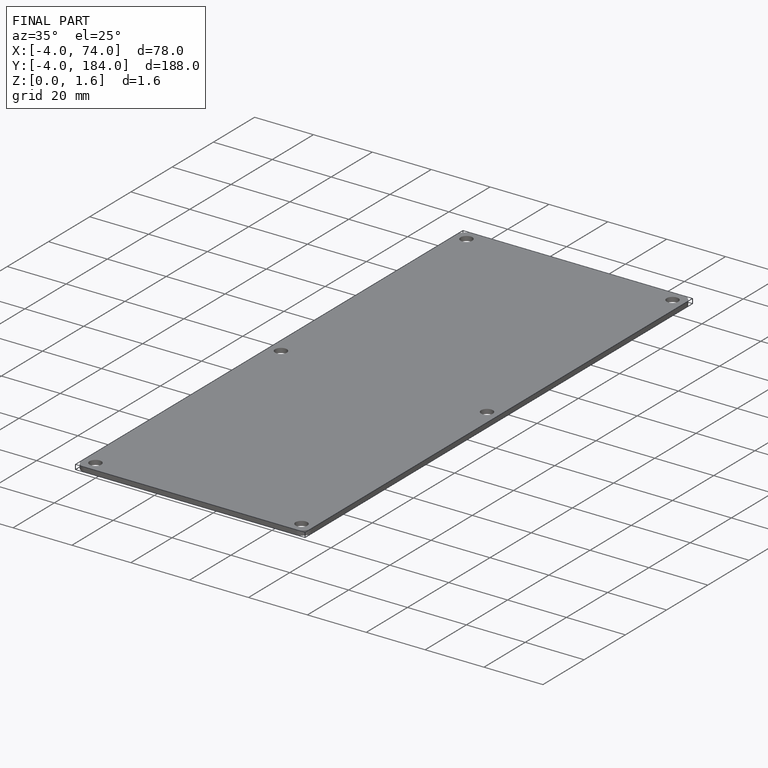
[diagram: finished part — iso view with bounding-box wireframe]
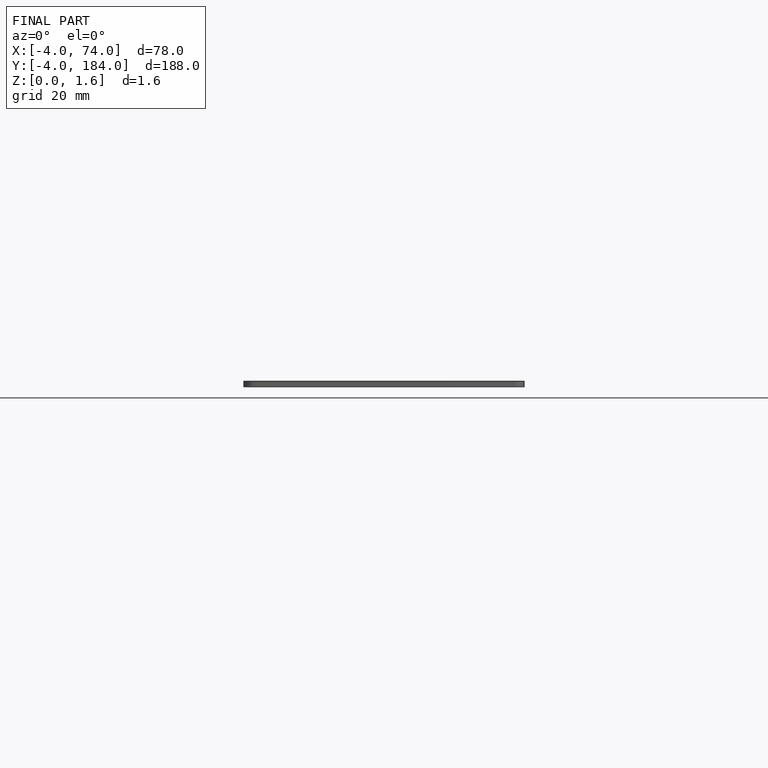
[diagram: finished part — front view with bounding-box wireframe]
